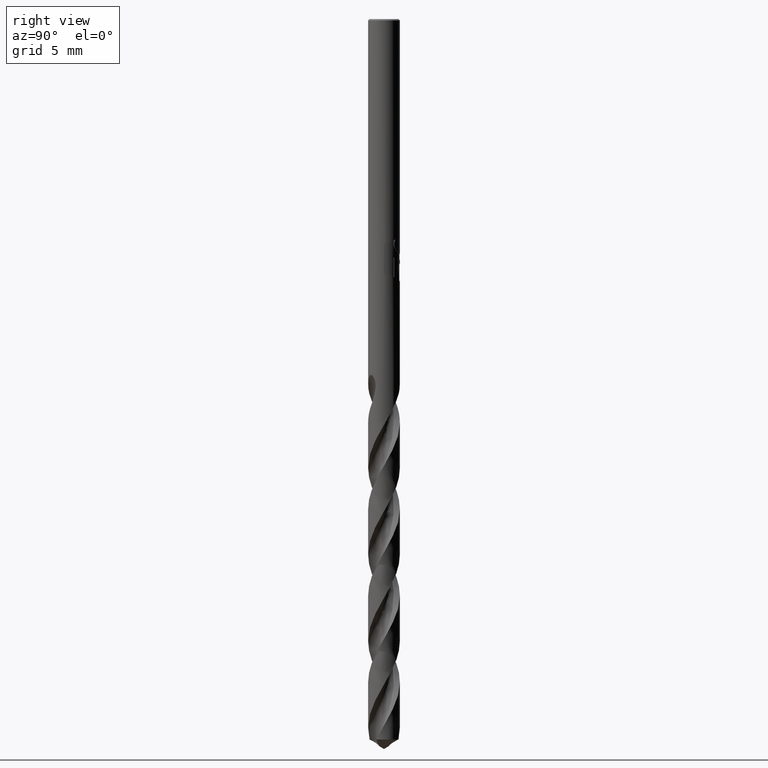
[diagram: clean part render]
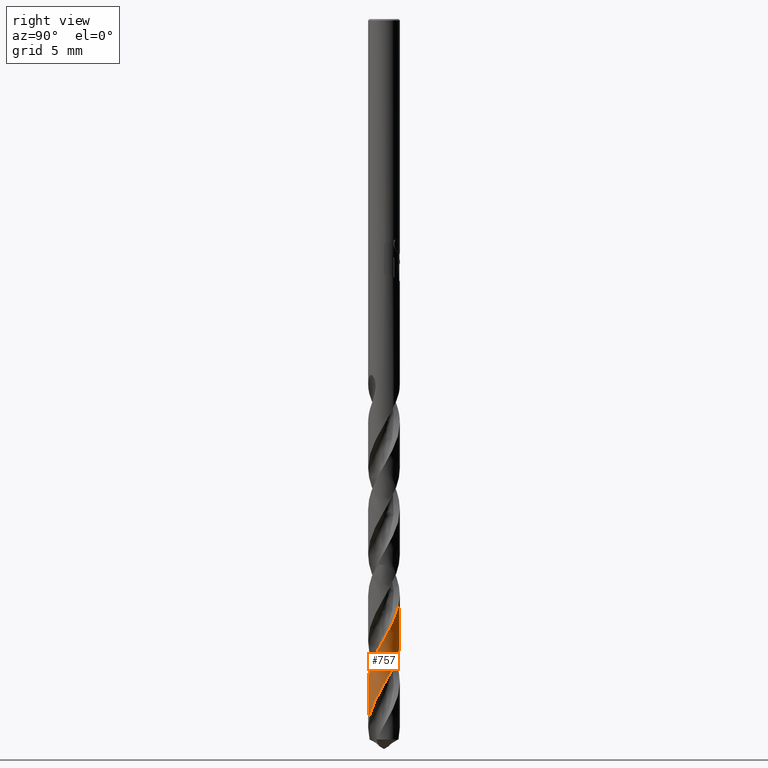
[diagram: same view with one face highlighted and labeled with its STEP entity id]
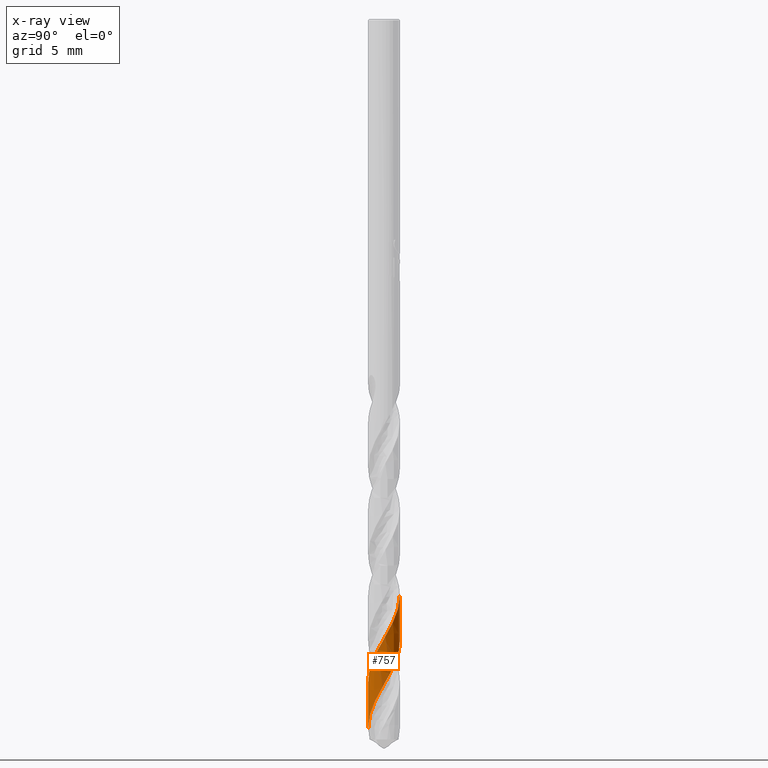
[diagram: x-ray of the same camera — body ghosted, the highlighted face saturated]
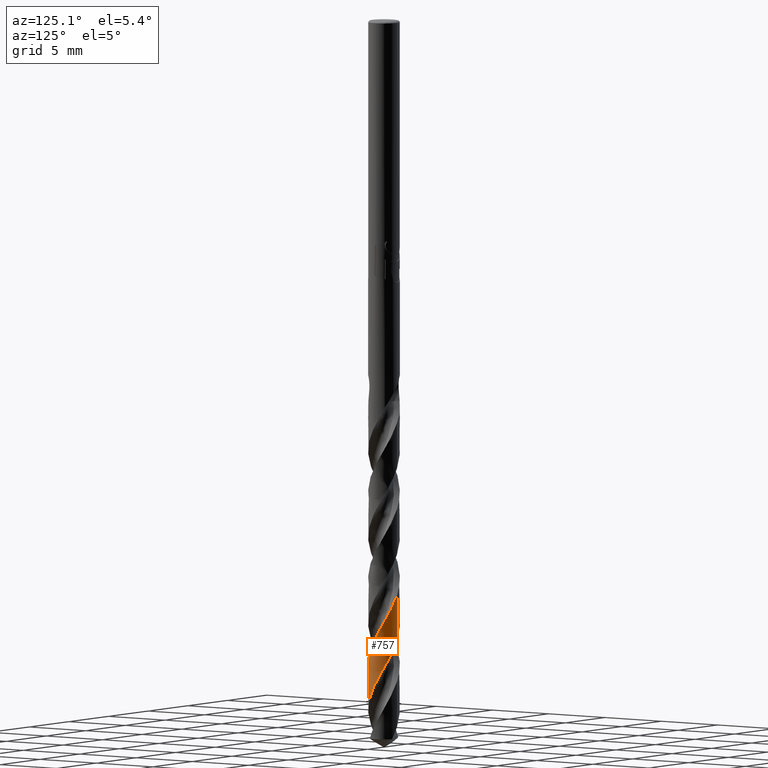
[diagram: same view with one face highlighted and labeled with its STEP entity id]
A machine part, right view. The second image highlights one B-rep face of the part: STEP entity #757.
The next image is the same camera in x-ray: the body ghosted, the highlighted face saturated — about 0% of this face is hidden behind the body in this view.
A second angle (auxiliary view) of the same face is appended — the face is thin or edge-on in the first view.
In plain terms, the highlighted conical surface has half-angle 0 deg.
Its self-contained STEP definition (entity closure, byte-faithful):
#323=VERTEX_POINT('',#882);
#339=EDGE_CURVE('',#399,#519,#898,.T.);
#399=VERTEX_POINT('',#963);
#519=VERTEX_POINT('',#1097);
#607=VERTEX_POINT('',#1193);
#701=EDGE_CURVE('',#323,#607,#1297,.T.);
#703=EDGE_CURVE('',#323,#519,#1299,.T.);
#757=ADVANCED_FACE('',(#1356),#1357,.T.);
#837=EDGE_CURVE('',#399,#607,#1444,.T.);
#882=CARTESIAN_POINT('',(-3.48266986827597E-015,-1.14999632800272,-51.4531040642526));
#898=B_SPLINE_CURVE_WITH_KNOTS('',3,(#1797,#1798,#1799,#1800,#1801,#1802,#1803,#1804,#1805,#1806,#1807,#1808,#1809,#1810,#1811,#1812,#1813,#1814,#1815,#1816,#1817,#1818,#1819,#1820,#1821,#1822,#1823,#1824,#1825,#1826,#1827,#1828,#1829,#1830,#1831,#1832,#1833,#1834,#1835,#1836,#1837,#1838,#1839,#1840,#1841,#1842,#1843,#1844,#1845,#1846,#1847,#1848,#1849,#1850,#1851,#1852,#1853,#1854,#1855,#1856,#1857,#1858,#1859,#1860,#1861,#1862,#1863,#1864,#1865,#1866,#1867,#1868,#1869,#1870,#1871,#1872,#1873,#1874,#1875,#1876,#1877,#1878,#1879,#1880,#1881,#1882,#1883,#1884,#1885,#1886,#1887,#1888,#1889,#1890,#1891,#1892,#1893,#1894,#1895,#1896,#1897,#1898,#1899,#1900,#1901,#1902,#1903,#1904,#1905,#1906,#1907,#1908,#1909,#1910,#1911,#1912,#1913,#1914,#1915,#1916,#1917,#1918),.UNSPECIFIED.,.F.,.F.,(4,2,2,2,2,2,2,2,2,2,2,2,2,2,2,2,2,2,2,2,2,2,2,2,2,2,2,2,2,2,2,2,2,2,2,2,2,2,2,2,2,2,2,2,2,2,2,2,2,2,2,2,2,2,2,2,2,2,2,2,4),(0.0,0.669140712787217,1.1112405268586,1.46179328794528,1.84825191138933,2.07302087262655,2.41438730550679,2.90578341686312,3.32930738417159,3.82191164897962,4.23764849911956,4.72472492821253,5.15291337848244,5.64931973527464,6.058676524674,6.54335340679256,6.97618411972176,7.47527140754393,7.87957268819964,8.36206723601752,8.7994599188664,9.30185186599785,9.70011590282073,10.1801391136454,10.6228822570825,11.1294875114605,11.5204168683707,11.9979372055285,12.4462754735378,12.9576031452189,13.3407253366009,13.8162188641282,14.269188688268,14.7846676052086,15.1612328073997,15.6355462316818,16.0911954863158,16.609174188735,16.9818780580014,17.4557126402016,17.9123554511767,18.4312751167536,18.8024740847121,19.2761384681806,19.6917630561227,20.1257661255631,20.7146306875411,21.1210084124392,21.5411055441778,22.031708081393,22.4508789439518,22.9402478974405,23.3615766809151,23.8539142720507,24.2704331733063,24.7576776055761,25.1793300488082,25.5990855958412,26.2370104009335,26.5585244720015,26.8813850982701),.UNSPECIFIED.);
#963=CARTESIAN_POINT('',(-8.47939066562287E-016,1.14995515288972,-41.855592739528));
#1097=CARTESIAN_POINT('',(3.73377892170656E-015,-1.14998211803264,-48.1409006760948));
#1193=CARTESIAN_POINT('',(4.78999465021206E-011,1.14996936397162,-45.1680552814023));
#1297=B_SPLINE_CURVE_WITH_KNOTS('',3,(#8862,#8863,#8864,#8865,#8866,#8867,#8868,#8869,#8870,#8871,#8872,#8873,#8874,#8875,#8876,#8877,#8878,#8879,#8880,#8881,#8882,#8883,#8884,#8885,#8886,#8887,#8888,#8889,#8890,#8891,#8892,#8893,#8894,#8895,#8896,#8897,#8898,#8899,#8900,#8901,#8902,#8903,#8904,#8905,#8906,#8907,#8908,#8909,#8910,#8911,#8912,#8913,#8914,#8915,#8916,#8917,#8918,#8919,#8920,#8921,#8922,#8923,#8924,#8925,#8926,#8927,#8928,#8929,#8930,#8931,#8932,#8933,#8934,#8935,#8936,#8937,#8938,#8939,#8940,#8941,#8942,#8943,#8944,#8945,#8946,#8947,#8948,#8949,#8950,#8951,#8952,#8953,#8954,#8955,#8956,#8957,#8958,#8959,#8960,#8961,#8962,#8963,#8964,#8965,#8966,#8967,#8968,#8969,#8970,#8971,#8972,#8973,#8974,#8975,#8976,#8977,#8978,#8979,#8980,#8981),.UNSPECIFIED.,.F.,.F.,(4,2,2,2,2,2,2,2,2,2,2,2,2,2,2,2,2,2,2,2,2,2,2,2,2,2,2,2,2,2,2,2,2,2,2,2,2,2,2,2,2,2,2,2,2,2,2,2,2,2,2,2,2,2,2,2,2,2,2,4),(0.0,0.190474712770356,0.972456263965106,1.09195136496799,1.54850497245867,1.7737016336699,2.07460915760301,2.60454654584869,3.0060166488804,3.5680448361947,3.90903156866148,4.44539825811764,4.84089716425906,5.4004938379955,5.74919044042563,6.28773238059797,6.68369161507919,7.24504495104997,7.59495645937115,8.13511817265177,8.53268915631988,9.09612947766089,9.44670022442565,9.98847879697269,10.387681777667,10.9531831016056,11.3044717823628,11.8478979764771,12.2486727790014,12.8161958614884,13.1682862164096,13.7133875375027,14.1156815122628,14.6851939438779,15.038157588513,15.5849575564878,15.9887283135478,16.5602044657329,16.9141009167351,17.4626196505999,17.8678335655891,18.4412532781992,18.796132582573,19.346389570962,19.7530143444129,20.3283486597053,20.6842767694988,21.2363290952015,21.6442484761846,22.2212944909144,22.5785994183942,23.1328460480001,23.5414082506438,24.1191839946706,24.4786117473804,25.0344081534701,25.6608066897256,26.138036840008,26.3158612353513,27.5899173459646),.UNSPECIFIED.);
#1299=LINE('',#8984,#8985);
#1356=FACE_OUTER_BOUND('',#10154,.T.);
#1357=CONICAL_SURFACE('',#10155,1.14995,4.2901864456403E-006);
#1444=LINE('',#11002,#11003);
#1797=CARTESIAN_POINT('',(-0.160535215467157,1.13863888088644,-29.0047099865156));
#1798=CARTESIAN_POINT('',(-0.0505320410538816,1.15414892341655,-29.1981231755715));
#1799=CARTESIAN_POINT('',(0.0611469037593601,1.15363685178821,-29.3903508356996));
#1800=CARTESIAN_POINT('',(0.243597851445322,1.12619941986927,-29.7115377074094));
#1801=CARTESIAN_POINT('',(0.315011565247229,1.10835270832932,-29.8389711117008));
#1802=CARTESIAN_POINT('',(0.439187036346417,1.06432620865022,-30.0679859280887));
#1803=CARTESIAN_POINT('',(0.49250328250028,1.04072455780766,-30.1690814369276));
#1804=CARTESIAN_POINT('',(0.600292192028337,0.982877170011774,-30.3821367185721));
#1805=CARTESIAN_POINT('',(0.654202930951254,0.947853199709139,-30.4937312540256));
#1806=CARTESIAN_POINT('',(0.734433030452498,0.885600990461353,-30.6703785841042));
#1807=CARTESIAN_POINT('',(0.762812226460582,0.861278578792989,-30.7352756817465));
#1808=CARTESIAN_POINT('',(0.831202417734905,0.796625147194592,-30.8988573686079));
#1809=CARTESIAN_POINT('',(0.869469511341987,0.754668358086334,-30.997356875189));
#1810=CARTESIAN_POINT('',(0.954844954255136,0.645924638931807,-31.2380969623533));
#1811=CARTESIAN_POINT('',(0.998283390104154,0.576537579830842,-31.3797824591748));
#1812=CARTESIAN_POINT('',(1.06481998765236,0.439784668579716,-31.6441705473842));
#1813=CARTESIAN_POINT('',(1.08972223414721,0.373826847438543,-31.7662374675905));
#1814=CARTESIAN_POINT('',(1.13020292204285,0.227220793411192,-32.0311006621592));
#1815=CARTESIAN_POINT('',(1.14351262654852,0.146239667371528,-32.1731355913951));
#1816=CARTESIAN_POINT('',(1.15198080837716,-0.00452295623712919,-32.435635279941));
#1817=CARTESIAN_POINT('',(1.14962579143023,-0.0736893688733732,-32.555469804753));
#1818=CARTESIAN_POINT('',(1.13109262556355,-0.222434439675132,-32.8164977044981));
#1819=CARTESIAN_POINT('',(1.11264949048709,-0.301458062667295,-32.9569628003841));
#1820=CARTESIAN_POINT('',(1.06264193288035,-0.445163991663158,-33.221482857009));
#1821=CARTESIAN_POINT('',(1.03306992414763,-0.51003349178528,-33.3448970329219));
#1822=CARTESIAN_POINT('',(0.956743093399072,-0.643235448724091,-33.6122403480352));
#1823=CARTESIAN_POINT('',(0.908165969990269,-0.710185264005399,-33.7553803225147));
#1824=CARTESIAN_POINT('',(0.807146199961697,-0.821867772899149,-34.0171674296607));
#1825=CARTESIAN_POINT('',(0.757129672811155,-0.868156599378999,-34.1351899823027));
#1826=CARTESIAN_POINT('',(0.63968271854984,-0.958961180187623,-34.3937119002338));
#1827=CARTESIAN_POINT('',(0.570977806143359,-1.00140048929112,-34.5335080708637));
#1828=CARTESIAN_POINT('',(0.433498204894291,-1.06751369807075,-34.7987099213241));
#1829=CARTESIAN_POINT('',(0.365899435032273,-1.09252568070779,-34.9234692895339));
#1830=CARTESIAN_POINT('',(0.216374056888842,-1.13242325778939,-35.1929637285748));
#1831=CARTESIAN_POINT('',(0.134166477511935,-1.14508477545468,-35.3368874128633));
#1832=CARTESIAN_POINT('',(-0.0159018464867578,-1.15178204340237,-35.5980199733149));
#1833=CARTESIAN_POINT('',(-0.0831525813228624,-1.14888215450266,-35.714607733321));
#1834=CARTESIAN_POINT('',(-0.229172565230655,-1.12970770328395,-35.9710683748089));
#1835=CARTESIAN_POINT('',(-0.307364294222165,-1.11099261541247,-36.1102575836633));
#1836=CARTESIAN_POINT('',(-0.451595259619498,-1.0600445906224,-36.3761809170238));
#1837=CARTESIAN_POINT('',(-0.517678701572706,-1.02938328128285,-36.5022633016709));
#1838=CARTESIAN_POINT('',(-0.652423549283746,-0.950606303600172,-36.7740664040964));
#1839=CARTESIAN_POINT('',(-0.719707073786612,-0.900749982371628,-36.9189518351195));
#1840=CARTESIAN_POINT('',(-0.829642726277907,-0.79901846948611,-37.1793257114403));
#1841=CARTESIAN_POINT('',(-0.874246160869857,-0.749947521691638,-37.2941963822981));
#1842=CARTESIAN_POINT('',(-0.962711808916787,-0.63395356853183,-37.5482272968233));
#1843=CARTESIAN_POINT('',(-1.00436939337155,-0.565659661504403,-37.6867264404027));
#1844=CARTESIAN_POINT('',(-1.07023679344114,-0.427051651966815,-37.9535155945044));
#1845=CARTESIAN_POINT('',(-1.0953598537676,-0.357707733061723,-38.0811471380273));
#1846=CARTESIAN_POINT('',(-1.13464677725559,-0.204988291318619,-38.3557499707075));
#1847=CARTESIAN_POINT('',(-1.14661698764312,-0.121381233193552,-38.5018564618689));
#1848=CARTESIAN_POINT('',(-1.15144255939209,0.0278255275020623,-38.7613584135838));
#1849=CARTESIAN_POINT('',(-1.14802737722943,0.0928317979987035,-38.8741391039733));
#1850=CARTESIAN_POINT('',(-1.12831199879232,0.23574186137566,-39.1253546609733));
#1851=CARTESIAN_POINT('',(-1.10936266219051,0.313039906799276,-39.263154113507));
#1852=CARTESIAN_POINT('',(-1.05742992922209,0.458013790500359,-39.530870320404));
#1853=CARTESIAN_POINT('',(-1.02552886937508,0.525559793556293,-39.6601211183575));
#1854=CARTESIAN_POINT('',(-0.943801882086496,0.662443629275729,-39.9377417250754));
#1855=CARTESIAN_POINT('',(-0.892279065302033,0.730378340433095,-40.0852142265075));
#1856=CARTESIAN_POINT('',(-0.789797377957815,0.838250462878262,-40.3438538900993));
#1857=CARTESIAN_POINT('',(-0.742165532393151,0.880695609238594,-40.4544081102428));
#1858=CARTESIAN_POINT('',(-0.628172119393808,0.966450092248266,-40.7028078612193));
#1859=CARTESIAN_POINT('',(-0.560277231701816,1.00733932015535,-40.8400431584361));
#1860=CARTESIAN_POINT('',(-0.420470844383486,1.07297312768927,-41.1085445990775));
#1861=CARTESIAN_POINT('',(-0.34932363358901,1.09819293538221,-41.2391382305522));
#1862=CARTESIAN_POINT('',(-0.193132242277135,1.13685026289974,-41.5193323140831));
#1863=CARTESIAN_POINT('',(-0.107900072707951,1.14808861680721,-41.6680071379106));
#1864=CARTESIAN_POINT('',(0.0404825302861857,1.15094903061611,-41.925980014113));
#1865=CARTESIAN_POINT('',(0.103072034989868,1.14703514618669,-42.0346654741281));
#1866=CARTESIAN_POINT('',(0.242988444054133,1.12675140315249,-42.2808546492571));
#1867=CARTESIAN_POINT('',(0.319664650337939,1.10744913427477,-42.417767519654));
#1868=CARTESIAN_POINT('',(0.465023941032113,1.05446861774646,-42.686733407111));
#1869=CARTESIAN_POINT('',(0.533459851054031,1.0215475791899,-42.8181099479354));
#1870=CARTESIAN_POINT('',(0.67163817545797,0.937400347048582,-43.099834372258));
#1871=CARTESIAN_POINT('',(0.739942603413748,0.884490677162745,-43.2492395148438));
#1872=CARTESIAN_POINT('',(0.846188597252141,0.781168238835327,-43.5068470542925));
#1873=CARTESIAN_POINT('',(0.887046831768138,0.734437198184658,-43.6144365243803));
#1874=CARTESIAN_POINT('',(0.970803823569402,0.621414945042581,-43.8593970404041));
#1875=CARTESIAN_POINT('',(1.01109390143312,0.55346421596624,-43.9961878588846));
#1876=CARTESIAN_POINT('',(1.07596947061437,0.412895900613272,-44.2653325873683));
#1877=CARTESIAN_POINT('',(1.10087333708658,0.340967319251611,-44.3970084751296));
#1878=CARTESIAN_POINT('',(1.13853865552414,0.183279121768702,-44.6793239330059));
#1879=CARTESIAN_POINT('',(1.14908872077341,0.0973564615235577,-44.8290140950102));
#1880=CARTESIAN_POINT('',(1.15050756953421,-0.0507620074608047,-45.086486766226));
#1881=CARTESIAN_POINT('',(1.14612118293916,-0.112436037781989,-45.1936561099769));
#1882=CARTESIAN_POINT('',(1.12494725680838,-0.251242563984626,-45.4381587469971));
#1883=CARTESIAN_POINT('',(1.10510917646841,-0.327688525552591,-45.5749157364591));
#1884=CARTESIAN_POINT('',(1.05343825580701,-0.466355268955941,-45.8321748222759));
#1885=CARTESIAN_POINT('',(1.02350708512625,-0.528812800936843,-45.9520522490295));
#1886=CARTESIAN_POINT('',(0.951277903067639,-0.650164523028262,-46.1979533446598));
#1887=CARTESIAN_POINT('',(0.908610465142536,-0.708578175622995,-46.3233511385914));
#1888=CARTESIAN_POINT('',(0.79574051395644,-0.8359674924284,-46.6192990795924));
#1889=CARTESIAN_POINT('',(0.721684649144722,-0.900665389941967,-46.7888791110781));
#1890=CARTESIAN_POINT('',(0.584274761219575,-0.992791231621296,-47.0769378901457));
#1891=CARTESIAN_POINT('',(0.524927874487591,-1.02541437096798,-47.1943066294771));
#1892=CARTESIAN_POINT('',(0.399018816373737,-1.08079800456734,-47.4334172353598));
#1893=CARTESIAN_POINT('',(0.332626581380065,-1.10303627180501,-47.5546388880417));
#1894=CARTESIAN_POINT('',(0.185308854742095,-1.13787822642793,-47.8182429736325));
#1895=CARTESIAN_POINT('',(0.104123004477136,-1.14816522797665,-47.9598731127766));
#1896=CARTESIAN_POINT('',(-0.0472732346820474,-1.15112661857542,-48.2230995357486));
#1897=CARTESIAN_POINT('',(-0.116962236861899,-1.14613970820665,-48.3440629126485));
#1898=CARTESIAN_POINT('',(-0.266012230632794,-1.12174817047468,-48.6070584275627));
#1899=CARTESIAN_POINT('',(-0.344728185615961,-1.10011936459314,-48.7483443064283));
#1900=CARTESIAN_POINT('',(-0.485817622822957,-1.04468519301863,-49.011854963677));
#1901=CARTESIAN_POINT('',(-0.548566950155434,-1.01313832876333,-49.133444813052));
#1902=CARTESIAN_POINT('',(-0.677495565408782,-0.932829283846833,-49.3979409589648));
#1903=CARTESIAN_POINT('',(-0.742197422605472,-0.882231572321385,-49.5400859887529));
#1904=CARTESIAN_POINT('',(-0.850754191775702,-0.776852617345446,-49.8030804004941));
#1905=CARTESIAN_POINT('',(-0.896003281570719,-0.724189312578988,-49.9233002384569));
#1906=CARTESIAN_POINT('',(-0.983261334878834,-0.601862636174719,-50.184944863956));
#1907=CARTESIAN_POINT('',(-1.02323601510282,-0.531082160712611,-50.3256369410675));
#1908=CARTESIAN_POINT('',(-1.08331955967187,-0.392210727415408,-50.5886570649767));
#1909=CARTESIAN_POINT('',(-1.10521722934382,-0.325413345315234,-50.7103435577496));
#1910=CARTESIAN_POINT('',(-1.13649195932066,-0.189058929798596,-50.9539580196114));
#1911=CARTESIAN_POINT('',(-1.14587804714331,-0.119718572406181,-51.0752859293729));
#1912=CARTESIAN_POINT('',(-1.15352105558394,0.0561596297420801,-51.3814175913431));
#1913=CARTESIAN_POINT('',(-1.14341551525432,0.16234683229025,-51.5651970404641));
#1914=CARTESIAN_POINT('',(-1.10655197457655,0.317646152694833,-51.8429418853275));
#1915=CARTESIAN_POINT('',(-1.09057733487971,0.368786966240767,-51.9358671712415));
#1916=CARTESIAN_POINT('',(-1.05151509028462,0.468726642337736,-52.1223426293592));
#1917=CARTESIAN_POINT('',(-1.02847656273726,0.517316852521605,-52.2155015879078));
#1918=CARTESIAN_POINT('',(-1.0021451942144,0.564096631538414,-52.3090102881183));
#8862=CARTESIAN_POINT('',(-0.47654649237179,-1.04661523044916,-52.3090102881183));
#8863=CARTESIAN_POINT('',(-0.447819401838668,-1.05969503478938,-52.2539207921481));
#8864=CARTESIAN_POINT('',(-0.418676630032397,-1.07153913681469,-52.1986662602295));
#8865=CARTESIAN_POINT('',(-0.267716068395371,-1.12581762057684,-51.9179510250252));
#8866=CARTESIAN_POINT('',(-0.139853522804903,-1.14874097722618,-51.6972171734322));
#8867=CARTESIAN_POINT('',(0.00898600485333408,-1.15013039896543,-51.4374264340009));
#8868=CARTESIAN_POINT('',(0.0286847027968524,-1.14980768671052,-51.4029502053509));
#8869=CARTESIAN_POINT('',(0.123736522952598,-1.14580278943841,-51.2368941548929));
#8870=CARTESIAN_POINT('',(0.198732127671002,-1.13522268768282,-51.1062374202046));
#8871=CARTESIAN_POINT('',(0.308617361233219,-1.10843912647381,-50.9100772463336));
#8872=CARTESIAN_POINT('',(0.344415764378887,-1.09783968780843,-50.8453734537873));
#8873=CARTESIAN_POINT('',(0.426593431016275,-1.06910309390171,-50.6938688319303));
#8874=CARTESIAN_POINT('',(0.472379510150405,-1.04967089792538,-50.6068299388839));
#8875=CARTESIAN_POINT('',(0.594924758139208,-0.988028679206707,-50.3676876652823));
#8876=CARTESIAN_POINT('',(0.668426702123194,-0.939881805570336,-50.2166790741497));
#8877=CARTESIAN_POINT('',(0.786892402039858,-0.841244388146354,-49.948938366465));
#8878=CARTESIAN_POINT('',(0.834071505794463,-0.794470468728028,-49.8329574846001));
#8879=CARTESIAN_POINT('',(0.936862050239628,-0.673314315113245,-49.5560990717011));
#8880=CARTESIAN_POINT('',(0.988089723488486,-0.595619822530755,-49.3963872366414));
#8881=CARTESIAN_POINT('',(1.05454711796511,-0.462135778039064,-49.1371561117044));
#8882=CARTESIAN_POINT('',(1.07585513424542,-0.410064869154262,-49.0388047170503));
#8883=CARTESIAN_POINT('',(1.12064580850377,-0.27278479178447,-48.7870870010121));
#8884=CARTESIAN_POINT('',(1.13830190983394,-0.185906818077691,-48.6347539839567));
#8885=CARTESIAN_POINT('',(1.15136694612959,-0.0327395714485795,-48.367727881585));
#8886=CARTESIAN_POINT('',(1.15136028349299,0.0324877186062583,-48.2538338961198));
#8887=CARTESIAN_POINT('',(1.13808157303112,0.188912472893831,-47.980266025714));
#8888=CARTESIAN_POINT('',(1.11933242680701,0.279349934171997,-47.8217301367118));
#8889=CARTESIAN_POINT('',(1.07165872778853,0.421064811376314,-47.5618287924259));
#8890=CARTESIAN_POINT('',(1.04935038460066,0.47390758177824,-47.4615760212691));
#8891=CARTESIAN_POINT('',(0.982923035973368,0.603421720971975,-47.2078472065447));
#8892=CARTESIAN_POINT('',(0.933642034393892,0.677201479229335,-47.0553939880231));
#8893=CARTESIAN_POINT('',(0.834139825592726,0.794289025352674,-46.7884792127234));
#8894=CARTESIAN_POINT('',(0.787930381407158,0.840130049766395,-46.6748218771547));
#8895=CARTESIAN_POINT('',(0.667667573351047,0.940808211400067,-46.4015067192873));
#8896=CARTESIAN_POINT('',(0.590282154718303,0.991206824959779,-46.2429877436916));
#8897=CARTESIAN_POINT('',(0.45611640970449,1.05720942883953,-45.9830804860477));
#8898=CARTESIAN_POINT('',(0.40288430422143,1.07860778772919,-45.882804149144));
#8899=CARTESIAN_POINT('',(0.26417584996273,1.12269635890779,-45.629089201948));
#8900=CARTESIAN_POINT('',(0.177116829991157,1.13969272054474,-45.4766720464306));
#8901=CARTESIAN_POINT('',(0.0238888412278694,1.15156630463376,-45.2097022177721));
#8902=CARTESIAN_POINT('',(-0.0412524780824023,1.15106138590624,-45.0959519232938));
#8903=CARTESIAN_POINT('',(-0.197522616365411,1.1366077504632,-44.8224694092448));
#8904=CARTESIAN_POINT('',(-0.287846801418922,1.11716621834237,-44.6638779748639));
#8905=CARTESIAN_POINT('',(-0.42916188119508,1.06842379854996,-44.404031030176));
#8906=CARTESIAN_POINT('',(-0.481774517157705,1.0457434259841,-44.303891129529));
#8907=CARTESIAN_POINT('',(-0.610691576980595,0.978402850344623,-44.0503507192294));
#8908=CARTESIAN_POINT('',(-0.684067090169479,0.928602436059371,-43.8979714060949));
#8909=CARTESIAN_POINT('',(-0.800468961119743,0.828200897781604,-43.6309441409986));
#8910=CARTESIAN_POINT('',(-0.84603879215478,0.781571527431062,-43.5170966369615));
#8911=CARTESIAN_POINT('',(-0.945916184740819,0.660398547009293,-43.2434517469226));
#8912=CARTESIAN_POINT('',(-0.995757822961656,0.582557883064162,-43.0847967552327));
#8913=CARTESIAN_POINT('',(-1.06067644044709,0.447941197046695,-42.8250027102692));
#8914=CARTESIAN_POINT('',(-1.081612818517,0.394685053149471,-42.724982490473));
#8915=CARTESIAN_POINT('',(-1.12460995945752,0.255831797586493,-42.4715922985584));
#8916=CARTESIAN_POINT('',(-1.14095354257954,0.168690410138947,-42.3192433897025));
#8917=CARTESIAN_POINT('',(-1.15170431608992,0.0153202926409253,-42.052169566519));
#8918=CARTESIAN_POINT('',(-1.15071034614546,-0.0499160436482574,-41.9382435443813));
#8919=CARTESIAN_POINT('',(-1.13505042131597,-0.206238086996978,-41.6644677613849));
#8920=CARTESIAN_POINT('',(-1.11489880941522,-0.296475659204134,-41.505761687145));
#8921=CARTESIAN_POINT('',(-1.06507633255538,-0.437351454936569,-41.2460099639889));
#8922=CARTESIAN_POINT('',(-1.04204558702547,-0.489675104459671,-41.1460857412776));
#8923=CARTESIAN_POINT('',(-0.973817778150874,-0.617946769401922,-40.8928156301516));
#8924=CARTESIAN_POINT('',(-0.92349281692093,-0.690922786507082,-40.7404907121925));
#8925=CARTESIAN_POINT('',(-0.822203294807687,-0.806615344833888,-40.4733800172847));
#8926=CARTESIAN_POINT('',(-0.775175967120325,-0.851890329153723,-40.3593919042168));
#8927=CARTESIAN_POINT('',(-0.653144198197099,-0.950928516362623,-40.0855124695887));
#8928=CARTESIAN_POINT('',(-0.574878195628124,-1.00020044766112,-39.9267658620888));
#8929=CARTESIAN_POINT('',(-0.439805720674898,-1.06405554369763,-39.667047555517));
#8930=CARTESIAN_POINT('',(-0.386485032649694,-1.08455035475668,-39.5671993401541));
#8931=CARTESIAN_POINT('',(-0.247434065481043,-1.12647148748373,-39.3140240812697));
#8932=CARTESIAN_POINT('',(-0.160199561280429,-1.14216100473409,-39.1617179424412));
#8933=CARTESIAN_POINT('',(-0.00671728631348754,-1.15177666045177,-38.894578310098));
#8934=CARTESIAN_POINT('',(0.0585728955968535,-1.15029219392799,-38.7805415187541));
#8935=CARTESIAN_POINT('',(0.214876025338967,-1.13343659226456,-38.506580720293));
#8936=CARTESIAN_POINT('',(0.304998216778465,-1.11258695453882,-38.3478022364854));
#8937=CARTESIAN_POINT('',(0.445451570527295,-1.06169516893267,-38.0881100894265));
#8938=CARTESIAN_POINT('',(0.497526978636172,-1.03830032446551,-37.98832152778));
#8939=CARTESIAN_POINT('',(0.625197056106559,-0.969161010974386,-37.7352205560489));
#8940=CARTESIAN_POINT('',(0.697778314791554,-0.918304905376636,-37.582929004471));
#8941=CARTESIAN_POINT('',(0.81273552306775,-0.816138945698162,-37.3157668788373));
#8942=CARTESIAN_POINT('',(0.857690252418549,-0.76873762799198,-37.2016922602708));
#8943=CARTESIAN_POINT('',(0.955853153693686,-0.645896281861122,-36.9276682674366));
#8944=CARTESIAN_POINT('',(1.00454523768548,-0.567229676694964,-36.7688650438467));
#8945=CARTESIAN_POINT('',(1.06735231117385,-0.43169911790701,-36.5091930495622));
#8946=CARTESIAN_POINT('',(1.08742099770928,-0.378282457649711,-36.4094506349923));
#8947=CARTESIAN_POINT('',(1.12827697843838,-0.238995176229228,-36.1564064684586));
#8948=CARTESIAN_POINT('',(1.14331116903835,-0.151661700370771,-36.0041255613637));
#8949=CARTESIAN_POINT('',(1.15178322458063,0.00190884754283747,-35.736947198534));
#8950=CARTESIAN_POINT('',(1.14980763945898,0.0672229107384217,-35.6228451530839));
#8951=CARTESIAN_POINT('',(1.13176494503751,0.223453279373711,-35.3487781228146));
#8952=CARTESIAN_POINT('',(1.11022696074205,0.313436929865054,-35.1899596491089));
#8953=CARTESIAN_POINT('',(1.05827433654088,0.453478815078356,-34.9302999773153));
#8954=CARTESIAN_POINT('',(1.0345046531651,0.505336236684807,-34.8305859196444));
#8955=CARTESIAN_POINT('',(0.964432611074831,0.632441344869782,-34.5775663996361));
#8956=CARTESIAN_POINT('',(0.913036795296832,0.704634788951028,-34.4252820806952));
#8957=CARTESIAN_POINT('',(0.810008307373998,0.818827619176344,-34.1581065364079));
#8958=CARTESIAN_POINT('',(0.762262473388228,0.863432879399833,-34.0440107883559));
#8959=CARTESIAN_POINT('',(0.638690022680789,0.960665465373388,-33.7699925905958));
#8960=CARTESIAN_POINT('',(0.559674241428019,1.0087572842792,-33.6112153548465));
#8961=CARTESIAN_POINT('',(0.423674672665634,1.0705493332308,-33.3515364244184));
#8962=CARTESIAN_POINT('',(0.370090878867576,1.09022280905199,-33.2517602227863));
#8963=CARTESIAN_POINT('',(0.230418420905908,1.13005106734933,-32.9985661058568));
#8964=CARTESIAN_POINT('',(0.142907963130205,1.14442967757042,-32.8461718892743));
#8965=CARTESIAN_POINT('',(-0.0106742983771991,1.15171537021885,-32.5790712060429));
#8966=CARTESIAN_POINT('',(-0.0758576851607103,1.14925033108766,-32.4651636843972));
#8967=CARTESIAN_POINT('',(-0.231632608086542,1.13008863380672,-32.191650358482));
#8968=CARTESIAN_POINT('',(-0.321258360241578,1.10795800458829,-32.0331824002593));
#8969=CARTESIAN_POINT('',(-0.46092707579076,1.05504716475807,-31.7735553360127));
#8970=CARTESIAN_POINT('',(-0.512786123620488,1.03082730095312,-31.6735128179167));
#8971=CARTESIAN_POINT('',(-0.639549366758695,0.959719351513237,-31.4201238697323));
#8972=CARTESIAN_POINT('',(-0.711377449149739,0.907778176296178,-31.2677891462887));
#8973=CARTESIAN_POINT('',(-0.850150997099133,0.780688079383757,-30.9408940527321));
#8974=CARTESIAN_POINT('',(-0.914593472251441,0.704103676474086,-30.7668436696616));
#8975=CARTESIAN_POINT('',(-1.00938852703651,0.5560556777831,-30.4617316853328));
#8976=CARTESIAN_POINT('',(-1.04385305469425,0.488250283187029,-30.3307321847634));
#8977=CARTESIAN_POINT('',(-1.08160891281771,0.391407328910175,-30.1494189080132));
#8978=CARTESIAN_POINT('',(-1.09086312846515,0.364814434302119,-30.1000828676959));
#8979=CARTESIAN_POINT('',(-1.15834738205437,0.145314011322432,-29.6987734878158));
#8980=CARTESIAN_POINT('',(-1.16589698435994,-0.0596490687288672,-29.3571617898136));
#8981=CARTESIAN_POINT('',(-1.12102241041649,-0.256083607929835,-29.0049567755897));
#8984=CARTESIAN_POINT('',(1.40081947692404E-016,-1.14995,-40.6545051440592));
#8985=VECTOR('',#11724,1.0);
#10154=EDGE_LOOP('',(#11786,#11787,#11788,#11789));
#10155=AXIS2_PLACEMENT_3D('',#11790,#11791,#11792);
#11002=CARTESIAN_POINT('',(-1.41565267623205E-016,1.14995,-40.6545051440592));
#11003=VECTOR('',#11864,1.0);
#11724=DIRECTION('',(-5.25378958039764E-022,4.29018644562714E-006,0.999999999990797));
#11786=ORIENTED_EDGE('',*,*,#837,.F.);
#11787=ORIENTED_EDGE('',*,*,#339,.T.);
#11788=ORIENTED_EDGE('',*,*,#703,.F.);
#11789=ORIENTED_EDGE('',*,*,#701,.T.);
#11790=CARTESIAN_POINT('',(0.0,0.0,-40.6545051440592));
#11791=DIRECTION('',(0.0,-0.0,-1.0));
#11792=DIRECTION('',(0.0,1.0,0.0));
#11864=DIRECTION('',(-5.25378958039764E-022,4.29018644562714E-006,-0.999999999990797));